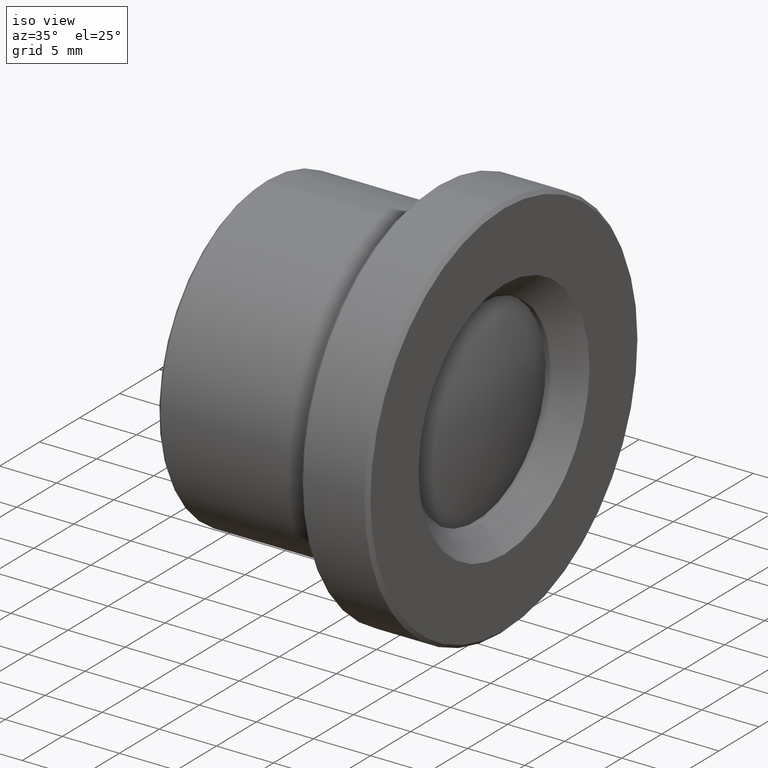
[diagram: clean part render]
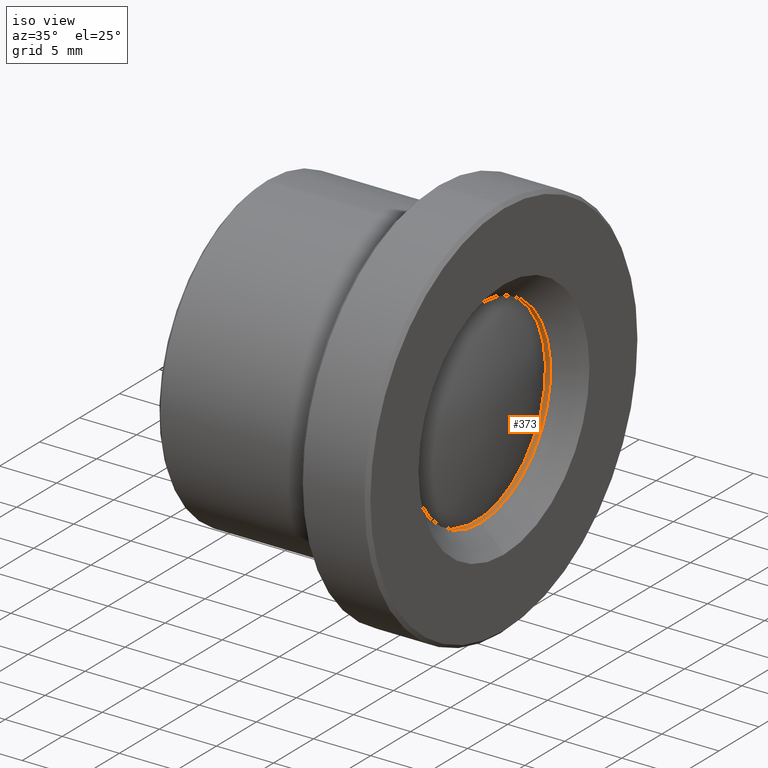
[diagram: same view with one face highlighted and labeled with its STEP entity id]
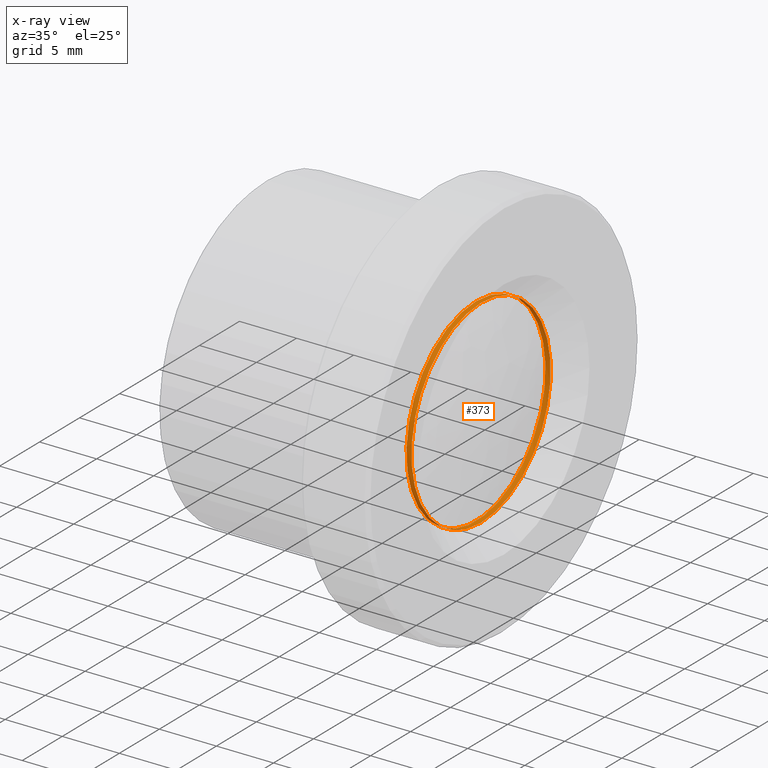
[diagram: x-ray of the same camera — body ghosted, the highlighted face saturated]
A machine part, iso view. The second image highlights one B-rep face of the part: STEP entity #373.
The next image is the same camera in x-ray: the body ghosted, the highlighted face saturated — about 0% of this face is hidden behind the body in this view.
In plain terms, the highlighted cylindrical surface (bore or boss wall) has radius 8.7 mm, axis along (-1, -0, -0).
Its self-contained STEP definition (entity closure, byte-faithful):
#32 = CYLINDRICAL_SURFACE ( 'NONE', #389, 8.699999999999818101 ) ;
#33 = CIRCLE ( 'NONE', #499, 8.699999999999818101 ) ;
#44 = DIRECTION ( 'NONE',  ( 1.000000000000000000, 0.000000000000000000, 0.000000000000000000 ) ) ;
#53 = AXIS2_PLACEMENT_3D ( 'NONE', #112, #44, #269 ) ;
#89 = EDGE_CURVE ( 'NONE', #111, #111, #33, .T. ) ;
#95 = EDGE_CURVE ( 'NONE', #384, #384, #139, .T. ) ;
#100 = CARTESIAN_POINT ( 'NONE',  ( 7639.495609507284826, -204.0133495471515630, 0.000000000000000000 ) ) ;
#111 = VERTEX_POINT ( 'NONE', #378 ) ;
#112 = CARTESIAN_POINT ( 'NONE',  ( 7659.980875221367569, -204.0133495471515630, 0.000000000000000000 ) ) ;
#114 = CARTESIAN_POINT ( 'NONE',  ( 7659.535657272195749, -204.0133495471515630, 0.000000000000000000 ) ) ;
#139 = CIRCLE ( 'NONE', #53, 8.699999999999818101 ) ;
#146 = DIRECTION ( 'NONE',  ( 0.000000000000000000, 0.000000000000000000, 1.000000000000000000 ) ) ;
#153 = DIRECTION ( 'NONE',  ( 1.000000000000000000, 0.000000000000000000, 0.000000000000000000 ) ) ;
#176 = EDGE_LOOP ( 'NONE', ( #353 ) ) ;
#213 = EDGE_LOOP ( 'NONE', ( #221 ) ) ;
#217 = FACE_OUTER_BOUND ( 'NONE', #176, .T. ) ;
#221 = ORIENTED_EDGE ( 'NONE', *, *, #89, .F. ) ;
#269 = DIRECTION ( 'NONE',  ( 0.000000000000000000, 0.000000000000000000, -1.000000000000000000 ) ) ;
#291 = DIRECTION ( 'NONE',  ( 0.000000000000000000, 0.000000000000000000, 1.000000000000000000 ) ) ;
#336 = DIRECTION ( 'NONE',  ( -1.000000000000000000, -0.000000000000000000, -0.000000000000000000 ) ) ;
#353 = ORIENTED_EDGE ( 'NONE', *, *, #95, .T. ) ;
#373 = ADVANCED_FACE ( 'NONE', ( #484, #217 ), #32, .F. ) ;
#378 = CARTESIAN_POINT ( 'NONE',  ( 7659.535657272195749, -204.0133495471515630, 8.699999999999818101 ) ) ;
#384 = VERTEX_POINT ( 'NONE', #466 ) ;
#389 = AXIS2_PLACEMENT_3D ( 'NONE', #100, #336, #291 ) ;
#466 = CARTESIAN_POINT ( 'NONE',  ( 7659.980875221367569, -204.0133495471515630, -8.699999999999818101 ) ) ;
#484 = FACE_OUTER_BOUND ( 'NONE', #213, .T. ) ;
#499 = AXIS2_PLACEMENT_3D ( 'NONE', #114, #153, #146 ) ;